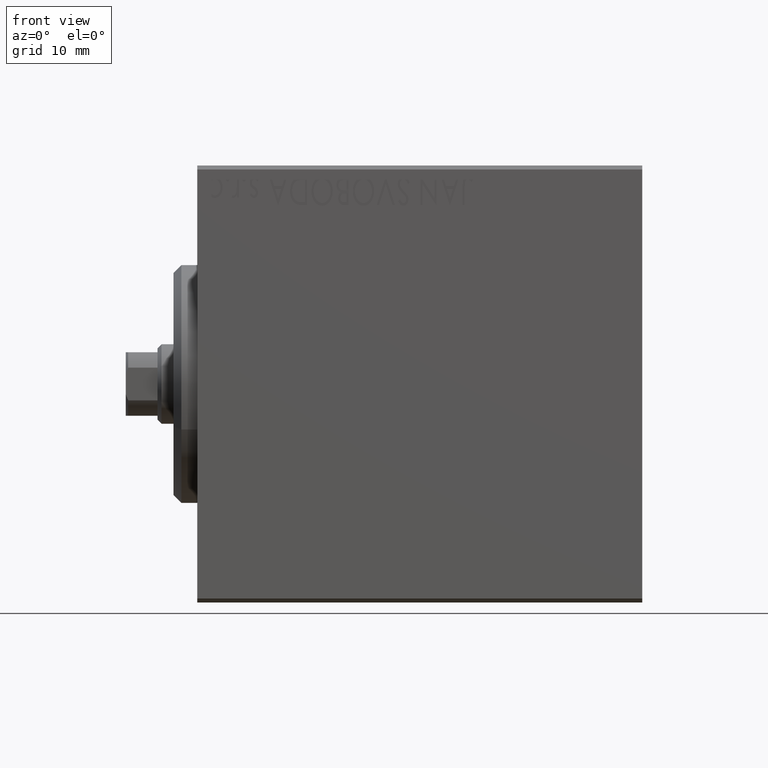
[diagram: clean part render]
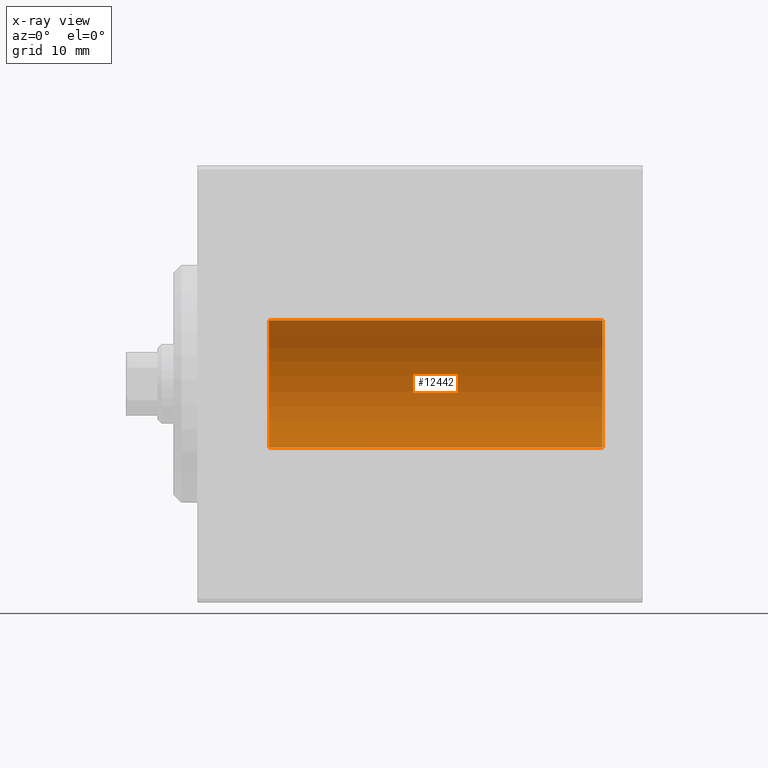
[diagram: x-ray — body ghosted, one internal face saturated and labeled with its STEP entity id]
A machine part, front view, then the same camera in x-ray: the body is ghosted and one INTERNAL B-rep face — a face not visible from any outside direction — is saturated and labeled: STEP entity #12442.
In plain terms, the highlighted cylindrical surface (partial cylindrical patch) has radius 8 mm, axis along (-1, -0, -0).
Its self-contained STEP definition (entity closure, byte-faithful):
#161 = CIRCLE ( 'NONE', #41260, 7.999999999999998224 ) ;
#761 = CARTESIAN_POINT ( 'NONE',  ( 51.00000000000000000, 0.000000000000000000, 0.000000000000000000 ) ) ;
#1146 = DIRECTION ( 'NONE',  ( 0.000000000000000000, 0.000000000000000000, 1.000000000000000000 ) ) ;
#1363 = DIRECTION ( 'NONE',  ( -1.000000000000000000, 0.000000000000000000, 0.000000000000000000 ) ) ;
#2067 = VERTEX_POINT ( 'NONE', #3444 ) ;
#2317 = AXIS2_PLACEMENT_3D ( 'NONE', #11767, #1363, #1146 ) ;
#3145 = FACE_OUTER_BOUND ( 'NONE', #20847, .T. ) ;
#3257 = LINE ( 'NONE', #26331, #28052 ) ;
#3444 = CARTESIAN_POINT ( 'NONE',  ( 9.000000000000001776, 9.797174393178823685E-16, -7.999999999999998224 ) ) ;
#3742 = CIRCLE ( 'NONE', #2317, 7.999999999999998224 ) ;
#3802 = ORIENTED_EDGE ( 'NONE', *, *, #31719, .T. ) ;
#5218 = VERTEX_POINT ( 'NONE', #40200 ) ;
#5267 = ORIENTED_EDGE ( 'NONE', *, *, #7958, .T. ) ;
#7958 = EDGE_CURVE ( 'NONE', #17731, #15602, #3257, .T. ) ;
#8047 = DIRECTION ( 'NONE',  ( -1.000000000000000000, 0.000000000000000000, 0.000000000000000000 ) ) ;
#11767 = CARTESIAN_POINT ( 'NONE',  ( 9.000000000000001776, 0.000000000000000000, 0.000000000000000000 ) ) ;
#12160 = ORIENTED_EDGE ( 'NONE', *, *, #13985, .F. ) ;
#12442 = ADVANCED_FACE ( 'NONE', ( #3145 ), #29991, .F. ) ;
#13985 = EDGE_CURVE ( 'NONE', #5218, #2067, #41759, .T. ) ;
#15602 = VERTEX_POINT ( 'NONE', #20317 ) ;
#16136 = DIRECTION ( 'NONE',  ( -1.000000000000000000, -0.000000000000000000, -0.000000000000000000 ) ) ;
#17731 = VERTEX_POINT ( 'NONE', #38289 ) ;
#20317 = CARTESIAN_POINT ( 'NONE',  ( 9.000000000000001776, 0.000000000000000000, 7.999999999999998224 ) ) ;
#20847 = EDGE_LOOP ( 'NONE', ( #12160, #34361, #5267, #3802 ) ) ;
#20946 = DIRECTION ( 'NONE',  ( 0.000000000000000000, 0.000000000000000000, 1.000000000000000000 ) ) ;
#21548 = CARTESIAN_POINT ( 'NONE',  ( 51.00000000000000000, 9.797174393178823685E-16, -7.999999999999998224 ) ) ;
#26331 = CARTESIAN_POINT ( 'NONE',  ( 51.00000000000000000, 0.000000000000000000, 7.999999999999998224 ) ) ;
#28052 = VECTOR ( 'NONE', #16136, 1000.000000000000000 ) ;
#29991 = CYLINDRICAL_SURFACE ( 'NONE', #31703, 7.999999999999998224 ) ;
#30206 = CARTESIAN_POINT ( 'NONE',  ( 51.00000000000000000, 0.000000000000000000, 0.000000000000000000 ) ) ;
#31294 = DIRECTION ( 'NONE',  ( 0.000000000000000000, 0.000000000000000000, 1.000000000000000000 ) ) ;
#31703 = AXIS2_PLACEMENT_3D ( 'NONE', #30206, #40436, #31294 ) ;
#31719 = EDGE_CURVE ( 'NONE', #15602, #2067, #3742, .T. ) ;
#31747 = DIRECTION ( 'NONE',  ( -1.000000000000000000, -0.000000000000000000, -0.000000000000000000 ) ) ;
#34361 = ORIENTED_EDGE ( 'NONE', *, *, #38785, .F. ) ;
#38289 = CARTESIAN_POINT ( 'NONE',  ( 51.00000000000000000, 0.000000000000000000, 7.999999999999998224 ) ) ;
#38785 = EDGE_CURVE ( 'NONE', #17731, #5218, #161, .T. ) ;
#40200 = CARTESIAN_POINT ( 'NONE',  ( 51.00000000000000000, 9.797174393178823685E-16, -7.999999999999998224 ) ) ;
#40254 = VECTOR ( 'NONE', #31747, 1000.000000000000000 ) ;
#40436 = DIRECTION ( 'NONE',  ( -1.000000000000000000, -0.000000000000000000, -0.000000000000000000 ) ) ;
#41260 = AXIS2_PLACEMENT_3D ( 'NONE', #761, #8047, #20946 ) ;
#41759 = LINE ( 'NONE', #21548, #40254 ) ;